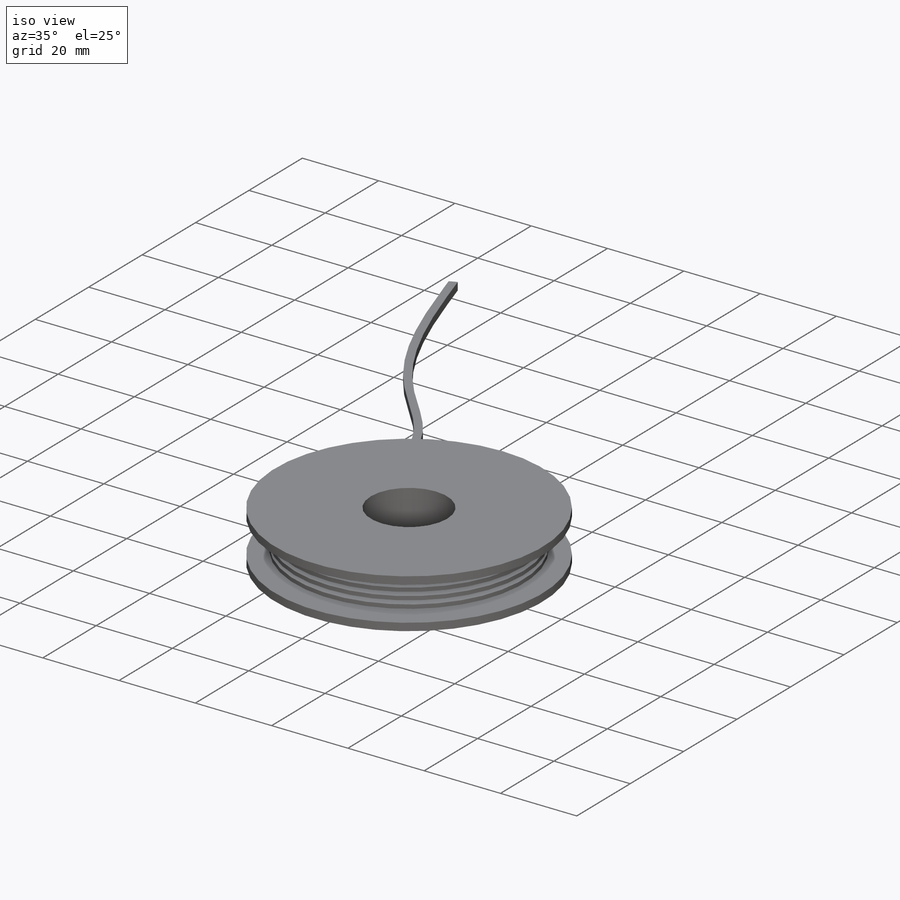
[diagram: iso view]
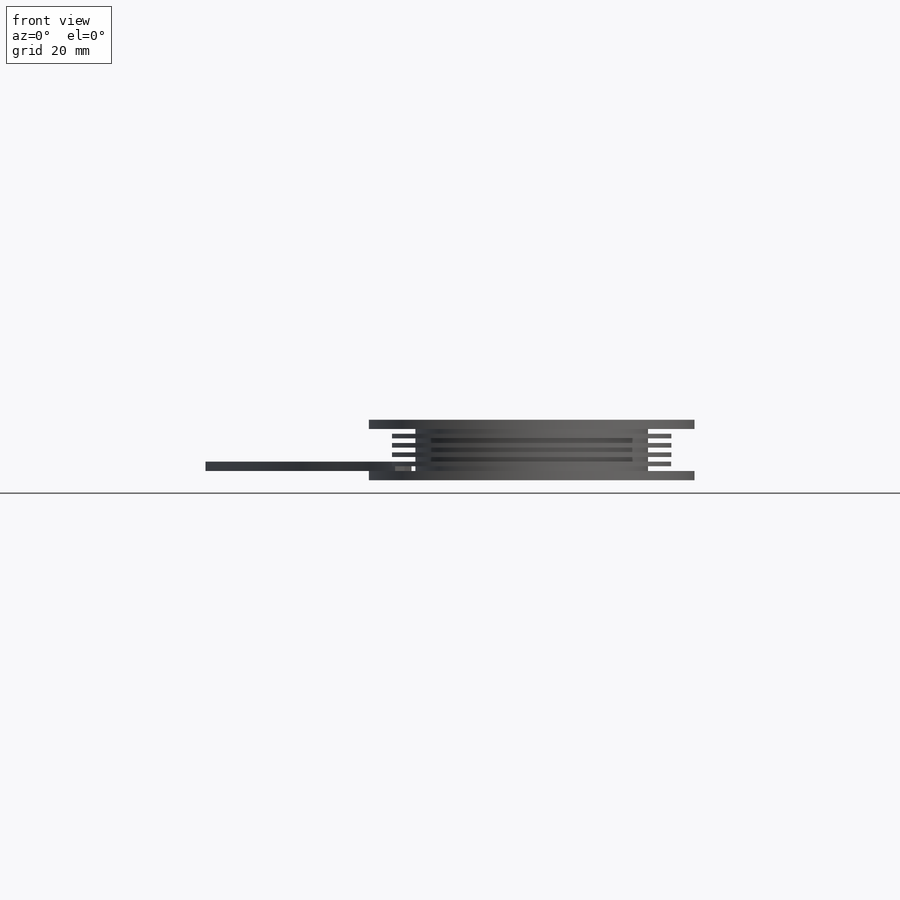
[diagram: front view]
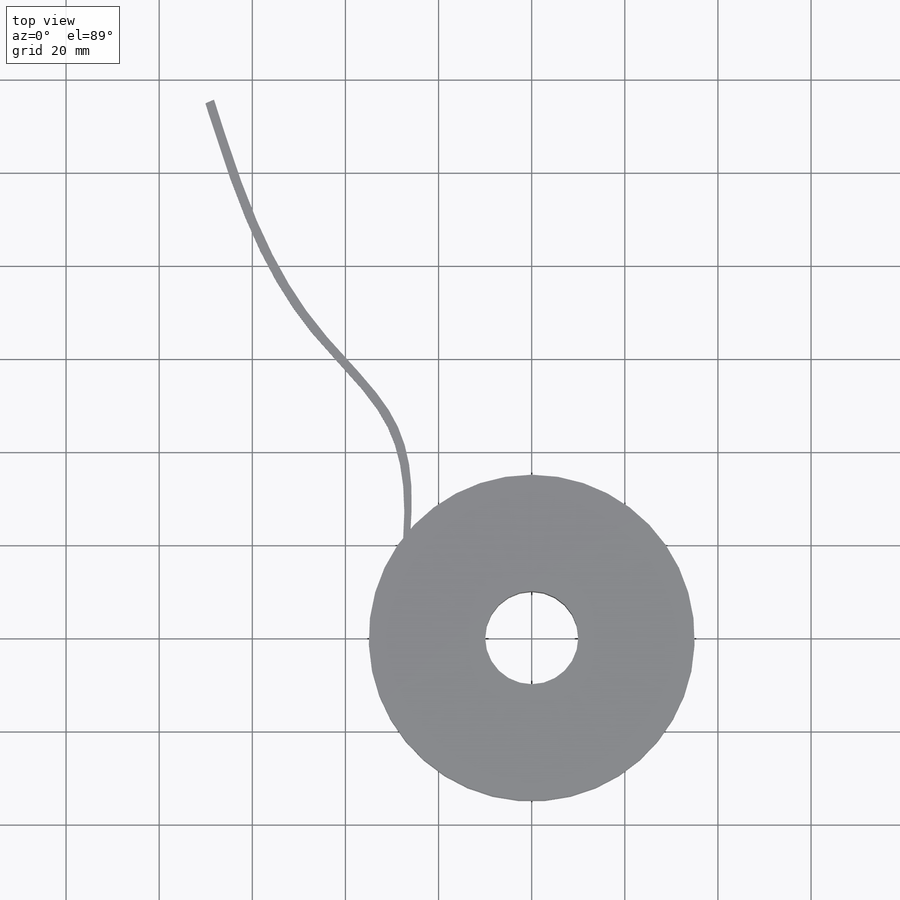
[diagram: top view]
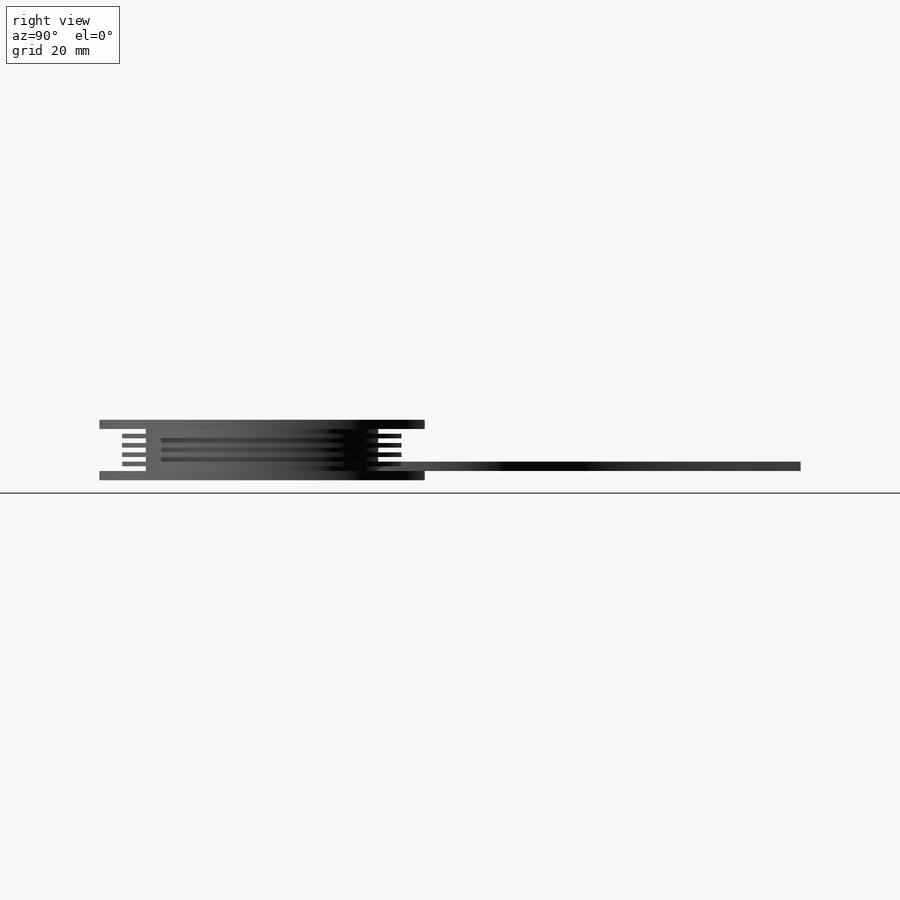
[diagram: right view]
SOLIDWORKS PART (.sldprt)
format: sldprt  version: not decoded by parser v0  size: 302,592 bytes
history: native  units: mm
features: plane x3, sketch x3, material x1, revolve x1, extrude x1, cut_extrude x1 (+11 scaffold rows collapsed)
feature tree (21):
  scaffold x11  (default folders/planes/origin — collapsed)
  material  "Material <nicht festgelegt>"
  plane  "Ebene vorne"
  plane  "Ebene oben"
  plane  "Ebene rechts"
  sketch  "Skizze2"  dims[c1.D1=70.0mm c1.D2=2.0mm c1.D3=~9.169061mm c2.D2=2.0mm c2.D3=5.0mm c2.D4=10.0mm c2.D5=1.0mm]
  revolve  "Rotation1"  Angle=360deg
  sketch  "Skizze5"  dims[c1.D2=~38.511625mm c1.D1=2.0mm c2.D2=2.0mm c2.D3=2.0mm c2.D4=2.0mm c3.D2=2.0mm]
  extrude  "Linear austragen1"  Depth=1mm
  sketch  "Skizze6"  dims[D1=20.0mm]
  cut_extrude  "Linear austragen2"  [1 undecoded]
decode coverage: 5 of 6 modeling features carry decoded parameters
note: ~ marks probable driven/reference dimensions
note: 1 parameter value undecoded
note: suppression state not decoded; provenance and decode notes live in map.json
